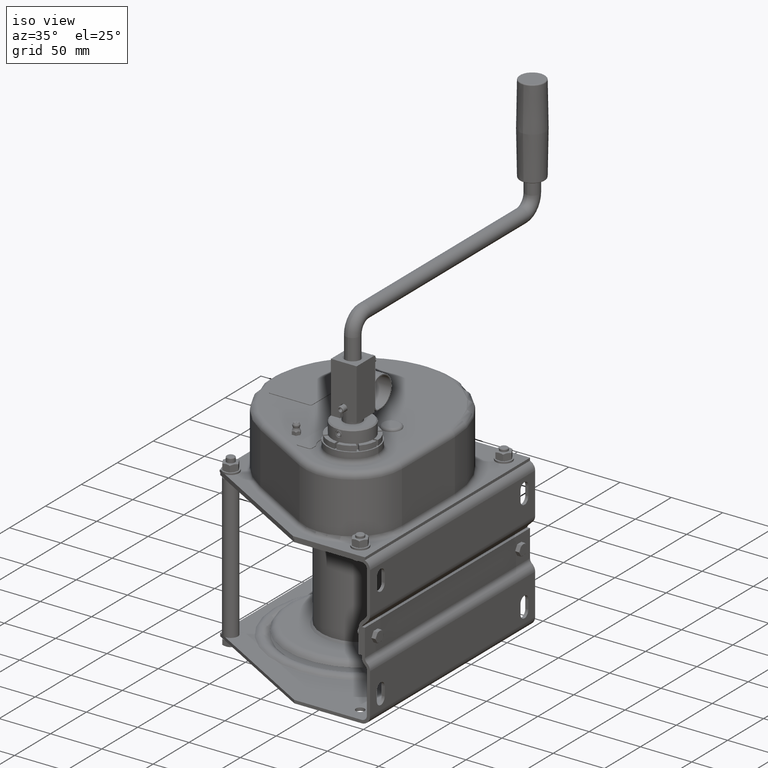
[diagram: clean part render]
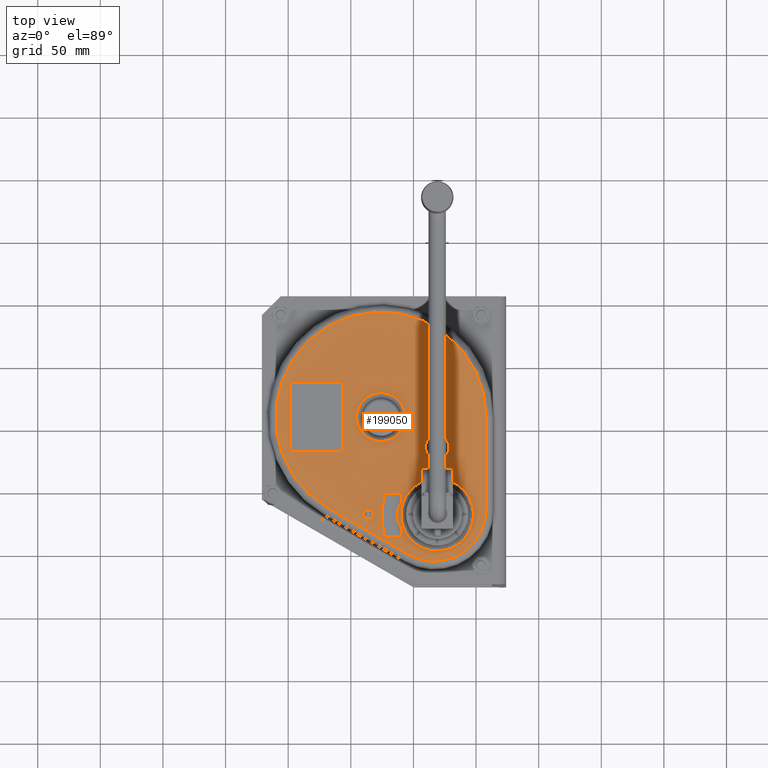
[diagram: tour spotlight — one face highlighted and labeled with its STEP entity id]
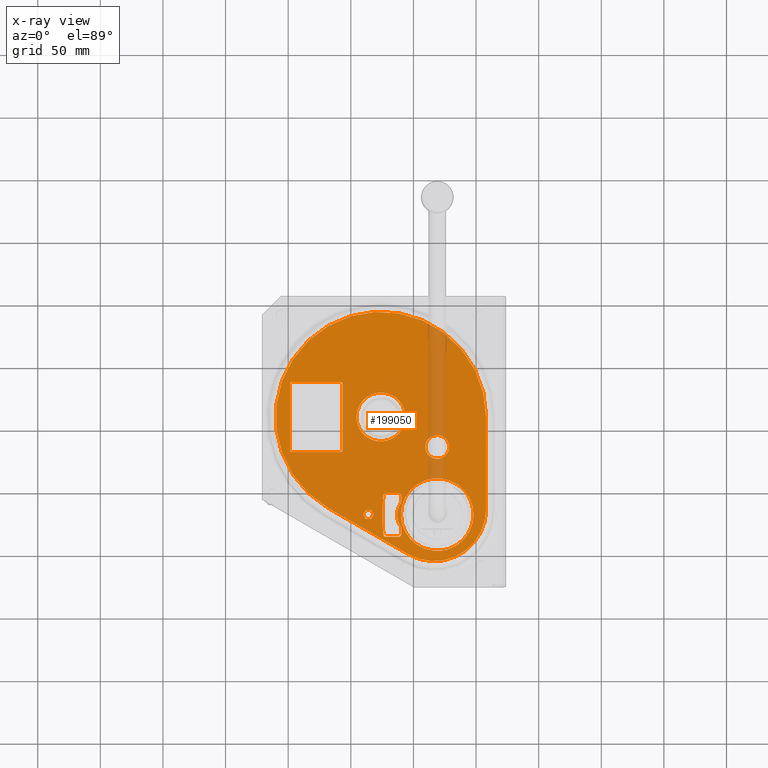
[diagram: x-ray of the same camera — body ghosted, this tour face saturated]
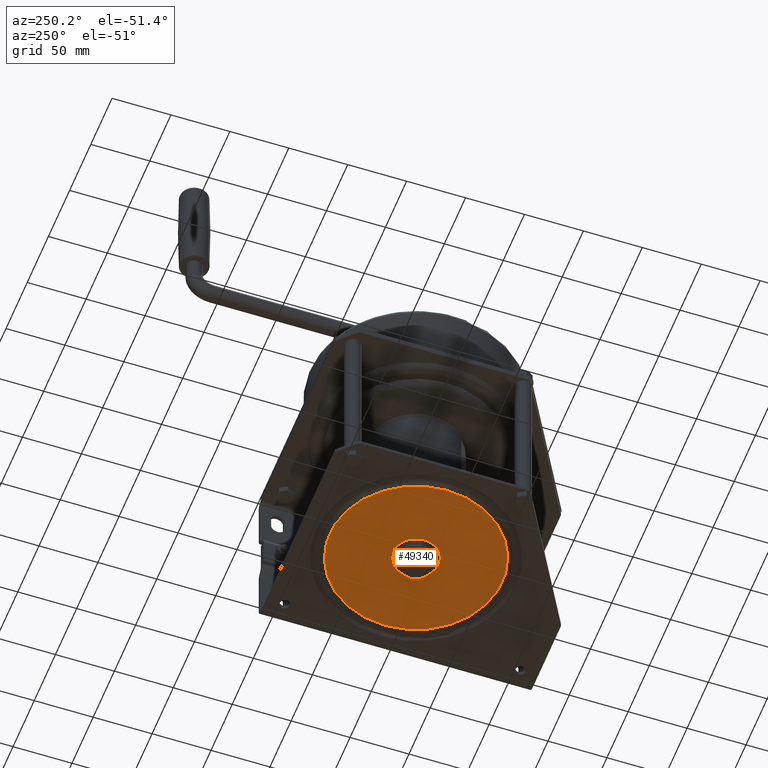
[diagram: tour spotlight — one face highlighted and labeled with its STEP entity id]
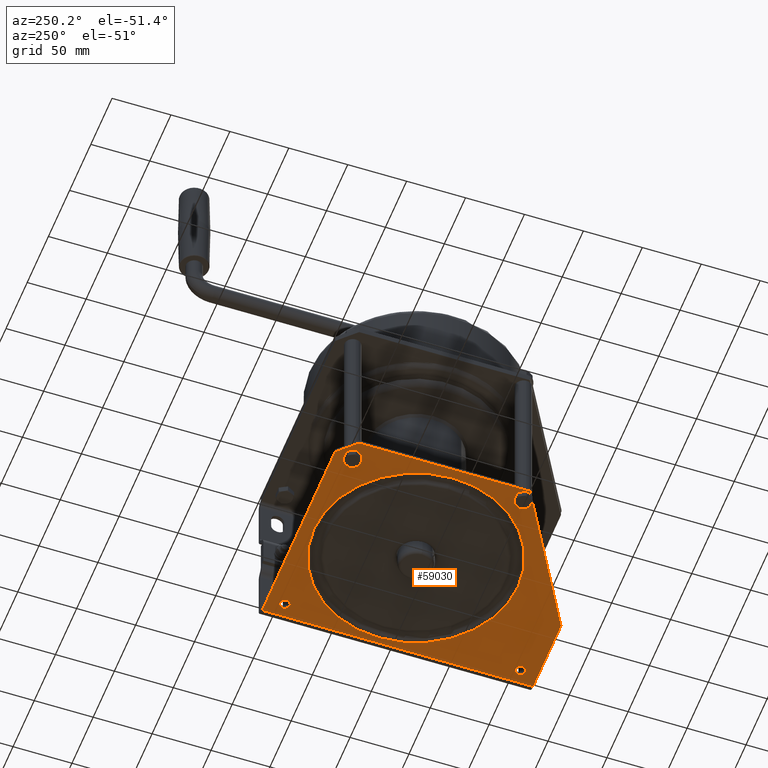
[diagram: tour spotlight — one face highlighted and labeled with its STEP entity id]
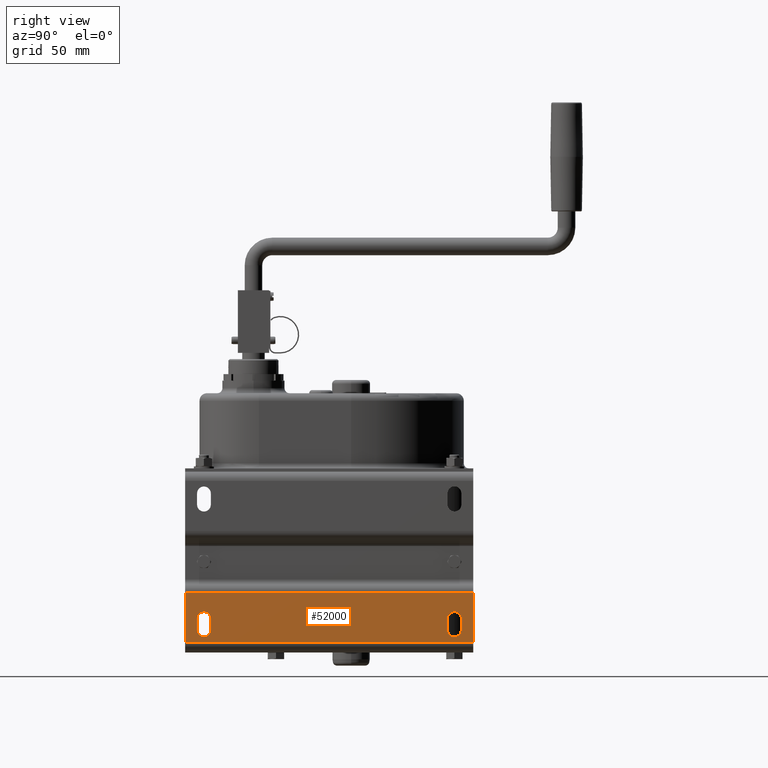
[diagram: tour spotlight — one face highlighted and labeled with its STEP entity id]
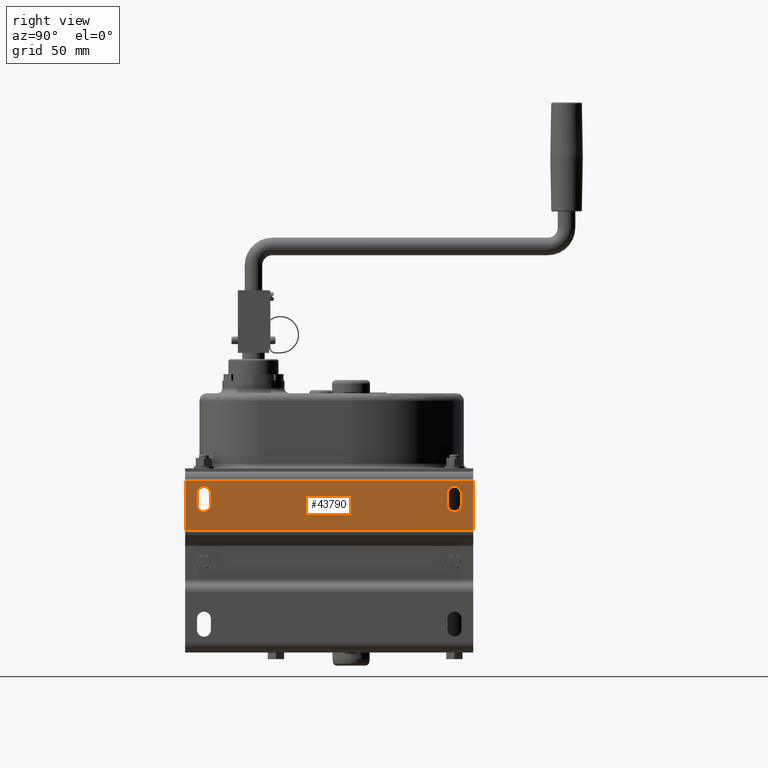
[diagram: tour spotlight — one face highlighted and labeled with its STEP entity id]
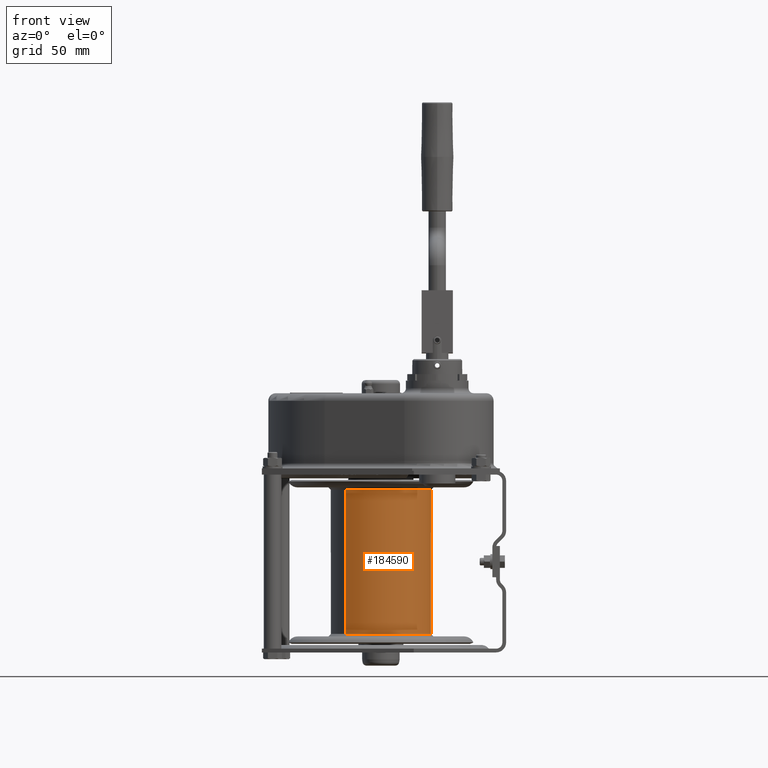
[diagram: tour spotlight — one face highlighted and labeled with its STEP entity id]
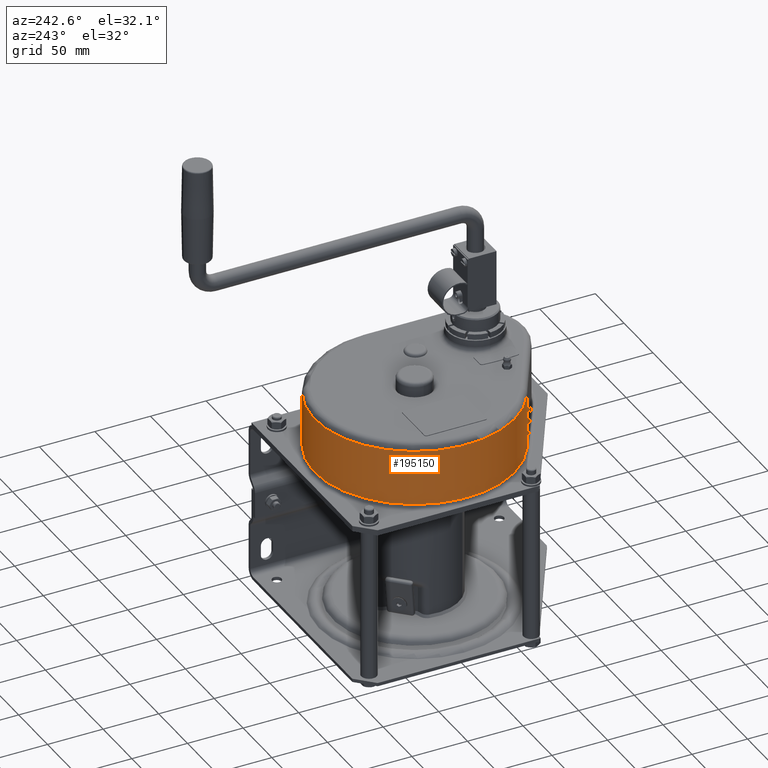
[diagram: tour spotlight — one face highlighted and labeled with its STEP entity id]
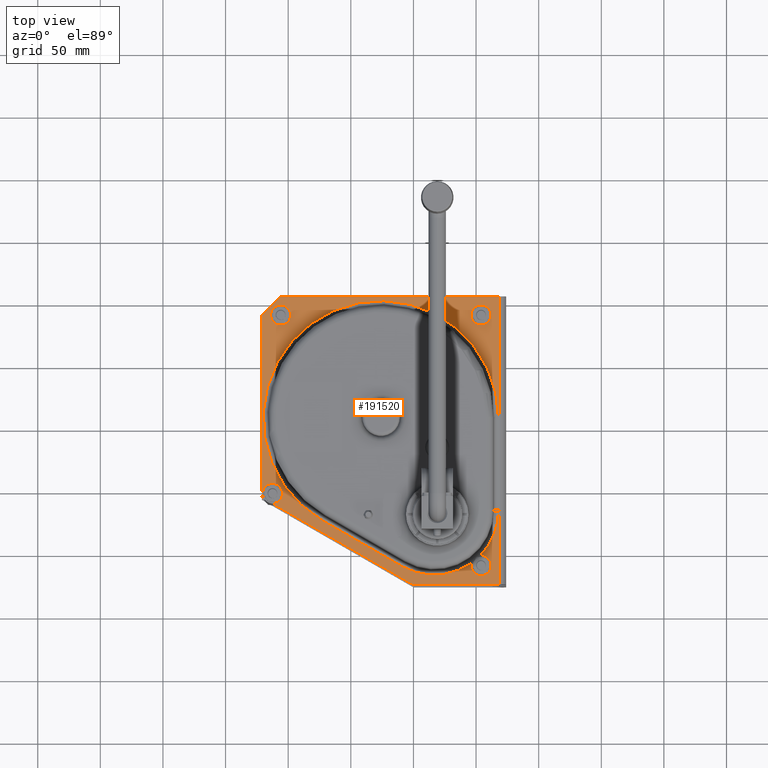
[diagram: tour spotlight — one face highlighted and labeled with its STEP entity id]
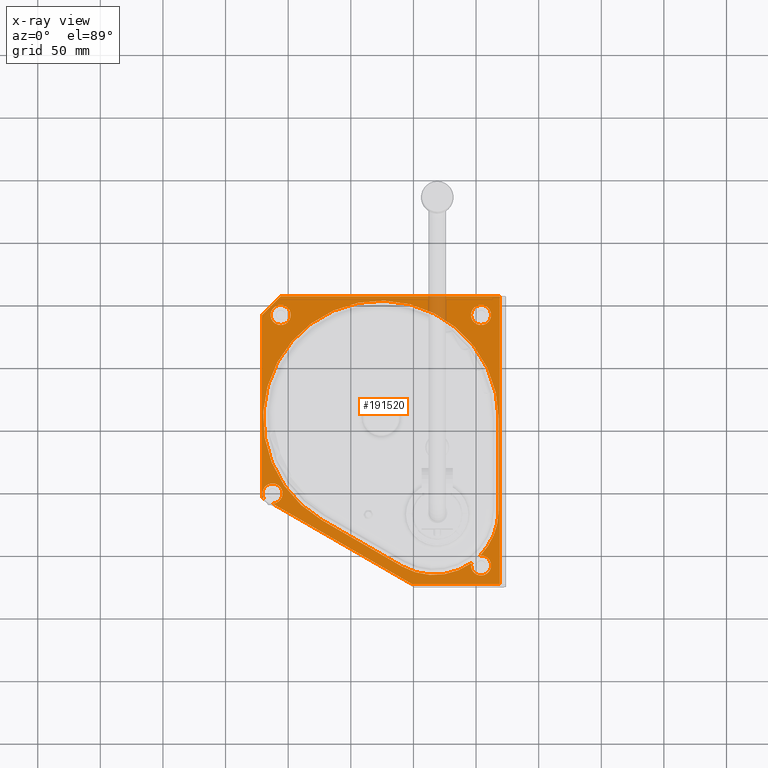
[diagram: x-ray of the same camera — body ghosted, this tour face saturated]
A machine part: a face-by-face anatomy tour. The part has 912 B-rep faces; the first image is the clean iso view, then the 8 largest visible faces are spotlighted one at a time (largest first), each with its STEP entity span.

Face 1 — top view, entity #199050. An x-ray twin of the same camera follows (body ghosted, this face saturated) — the face is partly hidden behind the body. In plain terms, the highlighted planar face has unit normal (0, 0, 1).
Definition (entity closure, byte-faithful):
#195840=CARTESIAN_POINT('',(-7.49652644692287,207.,-10.5109269209001));
#195850=DIRECTION('',(0.,1.,-0.));
#195860=DIRECTION('',(-1.,0.,0.));
#195870=AXIS2_PLACEMENT_3D('',#195840,#195850,#195860);
#195880=PLANE('',#195870);
#195890=CARTESIAN_POINT('',(0.,207.,0.));
#195900=DIRECTION('',(0.,1.,0.));
#195910=DIRECTION('',(-1.,0.,0.));
#195920=AXIS2_PLACEMENT_3D('',#195890,#195900,#195910);
#195930=CIRCLE('',#195920,19.5);
#195940=CARTESIAN_POINT('',(-19.5,207.,0.));
#195950=VERTEX_POINT('',#195940);
#195960=CARTESIAN_POINT('',(19.5,207.,0.));
#195970=VERTEX_POINT('',#195960);
#195980=EDGE_CURVE('',#195950,#195970,#195930,.T.);
#195990=ORIENTED_EDGE('',*,*,#195980,.F.);
#196000=EDGE_CURVE('',#195970,#195950,#195930,.T.);
#196010=ORIENTED_EDGE('',*,*,#196000,.F.);
#196020=EDGE_LOOP('',(#196010,#195990));
#196030=FACE_BOUND('',#196020,.T.);
#196040=CARTESIAN_POINT('',(-45.,207.,-77.9422863405995));
#196050=DIRECTION('',(0.,1.,0.));
#196060=DIRECTION('',(-1.,0.,0.));
#196070=AXIS2_PLACEMENT_3D('',#196040,#196050,#196060);
#196080=CIRCLE('',#196070,29.);
#196090=CARTESIAN_POINT('',(-74.,207.,-77.9422863405995));
#196100=VERTEX_POINT('',#196090);
#196110=CARTESIAN_POINT('',(-16.,207.,-77.9422863405995));
#196120=VERTEX_POINT('',#196110);
#196130=EDGE_CURVE('',#196100,#196120,#196080,.T.);
#196140=ORIENTED_EDGE('',*,*,#196130,.F.);
#196150=EDGE_CURVE('',#196120,#196100,#196080,.T.);
#196160=ORIENTED_EDGE('',*,*,#196150,.F.);
#196170=EDGE_LOOP('',(#196160,#196140));
#196180=FACE_BOUND('',#196170,.T.);
#196190=CARTESIAN_POINT('',(-42.5,207.,-73.6121593216773));
#196200=DIRECTION('',(0.,1.,0.));
#196210=DIRECTION('',(-1.,0.,0.));
#196220=AXIS2_PLACEMENT_3D('',#196190,#196200,#196210);
#196230=CIRCLE('',#196220,41.5);
#196240=CARTESIAN_POINT('',(-21.75,207.,-109.552213578732));
#196250=VERTEX_POINT('',#196240);
#196260=CARTESIAN_POINT('',(-84.,207.,-73.6121593216773));
#196270=VERTEX_POINT('',#196260);
#196280=EDGE_CURVE('',#196250,#196270,#196230,.T.);
#196290=ORIENTED_EDGE('',*,*,#196280,.T.);
#196300=CARTESIAN_POINT('',(-65.2373220768531,207.,-134.659630686139));
#196310=DIRECTION('',(-0.866025403784439,0.,-0.5));
#196320=VECTOR('',#196310,1.);
#196330=LINE('',#196300,#196320);
#196340=CARTESIAN_POINT('',(42.,207.,-72.7461339178928));
#196350=VERTEX_POINT('',#196340);
#196360=EDGE_CURVE('',#196350,#196250,#196330,.T.);
#196370=ORIENTED_EDGE('',*,*,#196360,.T.);
#196380=CARTESIAN_POINT('',(0.,207.,0.));
#196390=DIRECTION('',(0.,1.,0.));
#196400=DIRECTION('',(-1.,0.,0.));
#196410=AXIS2_PLACEMENT_3D('',#196380,#196390,#196400);
#196420=CIRCLE('',#196410,84.);
#196430=CARTESIAN_POINT('',(-84.,207.,0.));
#196440=VERTEX_POINT('',#196430);
#196450=EDGE_CURVE('',#196440,#196350,#196420,.T.);
#196460=ORIENTED_EDGE('',*,*,#196450,.T.);
#196470=CARTESIAN_POINT('',(-84.,207.,-96.1569234220613));
#196480=DIRECTION('',(1.93050371652624E-16,0.,1.));
#196490=VECTOR('',#196480,1.);
#196500=LINE('',#196470,#196490);
#196510=EDGE_CURVE('',#196270,#196440,#196500,.T.);
#196520=ORIENTED_EDGE('',*,*,#196510,.T.);
#196530=EDGE_LOOP('',(#196520,#196460,#196370,#196290));
#196540=FACE_OUTER_BOUND('',#196530,.T.);
#196550=CARTESIAN_POINT('',(-45.,207.,-24.));
#196560=DIRECTION('',(0.,-1.,0.));
#196570=DIRECTION('',(1.,0.,0.));
#196580=AXIS2_PLACEMENT_3D('',#196550,#196560,#196570);
#196590=CIRCLE('',#196580,9.5);
#196600=CARTESIAN_POINT('',(-35.5,207.,-24.));
#196610=VERTEX_POINT('',#196600);
#196620=CARTESIAN_POINT('',(-54.5,207.,-24.));
#196630=VERTEX_POINT('',#196620);
#196640=EDGE_CURVE('',#196610,#196630,#196590,.T.);
#196650=ORIENTED_EDGE('',*,*,#196640,.T.);
#196660=EDGE_CURVE('',#196630,#196610,#196590,.T.);
#196670=ORIENTED_EDGE('',*,*,#196660,.T.);
#196680=EDGE_LOOP('',(#196670,#196650));
#196690=FACE_BOUND('',#196680,.T.);
#196700=CARTESIAN_POINT('',(70.5499999999988,207.,26.0149999999991));
#196710=DIRECTION('',(-1.56776205345258E-15,-1.,-5.23253064359085E-15));
#196720=DIRECTION('',(-1.,1.56776205345258E-15,1.22124532708767E-15));
#196730=AXIS2_PLACEMENT_3D('',#196700,#196710,#196720);
#196740=CIRCLE('',#196730,2.);
#196750=CARTESIAN_POINT('',(72.5499999999988,207.,26.0149999999991));
#196760=VERTEX_POINT('',#196750);
#196770=CARTESIAN_POINT('',(70.5499999999988,207.,28.0149999999991));
#196780=VERTEX_POINT('',#196770);
#196790=EDGE_CURVE('',#196760,#196780,#196740,.T.);
#196800=ORIENTED_EDGE('',*,*,#196790,.T.);
#196810=CARTESIAN_POINT('',(72.5499999999988,207.,-96.1569234220613));
#196820=DIRECTION('',(5.55111512312496E-17,0.,-1.));
#196830=VECTOR('',#196820,1.);
#196840=LINE('',#196810,#196830);
#196850=CARTESIAN_POINT('',(72.5499999999988,207.,-25.9850000000009));
#196860=VERTEX_POINT('',#196850);
#196870=EDGE_CURVE('',#196760,#196860,#196840,.T.);
#196880=ORIENTED_EDGE('',*,*,#196870,.F.);
#196890=CARTESIAN_POINT('',(70.5499999999988,207.,-25.9850000000009));
#196900=DIRECTION('',(-1.56776205345258E-15,-1.,-5.23253064359085E-15));
#196910=DIRECTION('',(-1.,1.56776205345258E-15,1.22124532708767E-15));
#196920=AXIS2_PLACEMENT_3D('',#196890,#196900,#196910);
#196930=CIRCLE('',#196920,2.);
#196940=CARTESIAN_POINT('',(70.5499999999988,207.,-27.9850000000009));
#196950=VERTEX_POINT('',#196940);
#196960=EDGE_CURVE('',#196950,#196860,#196930,.T.);
#196970=ORIENTED_EDGE('',*,*,#196960,.T.);
#196980=CARTESIAN_POINT('',(-65.2373220768531,207.,-27.9850000000008));
#196990=DIRECTION('',(-1.,0.,6.66133814775086E-16));
#197000=VECTOR('',#196990,1.);
#197010=LINE('',#196980,#197000);
#197020=CARTESIAN_POINT('',(32.5499999999988,207.,-27.9850000000009));
#197030=VERTEX_POINT('',#197020);
#197040=EDGE_CURVE('',#196950,#197030,#197010,.T.);
#197050=ORIENTED_EDGE('',*,*,#197040,.F.);
#197060=CARTESIAN_POINT('',(32.5499999999988,207.,-25.9850000000009));
#197070=DIRECTION('',(-1.56776205345258E-15,-1.,-5.23253064359085E-15));
#197080=DIRECTION('',(-1.,1.56776205345258E-15,1.22124532708767E-15));
#197090=AXIS2_PLACEMENT_3D('',#197060,#197070,#197080);
#197100=CIRCLE('',#197090,2.);
#197110=CARTESIAN_POINT('',(30.5499999999988,207.,-25.9850000000009));
#197120=VERTEX_POINT('',#197110);
#197130=EDGE_CURVE('',#197120,#197030,#197100,.T.);
#197140=ORIENTED_EDGE('',*,*,#197130,.T.);
#197150=CARTESIAN_POINT('',(30.5499999999987,207.,-96.1569234220613));
#197160=DIRECTION('',(1.27675647831894E-15,0.,1.));
#197170=VECTOR('',#197160,1.);
#197180=LINE('',#197150,#197170);
#197190=CARTESIAN_POINT('',(30.5499999999989,207.,26.0149999999991));
#197200=VERTEX_POINT('',#197190);
#197210=EDGE_CURVE('',#197120,#197200,#197180,.T.);
#197220=ORIENTED_EDGE('',*,*,#197210,.F.);
#197230=CARTESIAN_POINT('',(32.5499999999989,207.,26.0149999999991));
#197240=DIRECTION('',(1.56776205345258E-15,1.,5.23253064359085E-15));
#197250=DIRECTION('',(1.,-1.56776205345258E-15,-1.22124532708767E-15));
#197260=AXIS2_PLACEMENT_3D('',#197230,#197240,#197250);
#197270=CIRCLE('',#197260,2.);
#197280=CARTESIAN_POINT('',(32.5499999999989,207.,28.0149999999991));
#197290=VERTEX_POINT('',#197280);
#197300=EDGE_CURVE('',#197200,#197290,#197270,.T.);
#197310=ORIENTED_EDGE('',*,*,#197300,.F.);
#197320=CARTESIAN_POINT('',(-65.2373220768531,207.,28.0149999999992));
#197330=DIRECTION('',(-1.,0.,1.22124532708766E-15));
#197340=VECTOR('',#197330,1.);
#197350=LINE('',#197320,#197340);
#197360=EDGE_CURVE('',#196780,#197290,#197350,.T.);
#197370=ORIENTED_EDGE('',*,*,#197360,.T.);
#197380=EDGE_LOOP('',(#197370,#197310,#197220,#197140,#197050,#196970,
#196880,#196800));
#197390=FACE_BOUND('',#197380,.T.);
#197400=CARTESIAN_POINT('',(-165.8866282858,207.,-78.6254850684709));
#197410=DIRECTION('',(3.14500586553911E-32,1.,-1.22464679914736E-16));
#197420=DIRECTION('',(-5.55111512312578E-17,1.22464679914736E-16,1.));
#197430=AXIS2_PLACEMENT_3D('',#197400,#197410,#197420);
#197440=CIRCLE('',#197430,164.541232103691);
#197450=CARTESIAN_POINT('',(-1.34596712250209,207.,-78.1920267131956));
#197460=VERTEX_POINT('',#197450);
#197470=CARTESIAN_POINT('',(-2.05437515703508,207.,-93.8835942879404));
#197480=VERTEX_POINT('',#197470);
#197490=EDGE_CURVE('',#197460,#197480,#197440,.T.);
#197500=ORIENTED_EDGE('',*,*,#197490,.F.);
#197510=CARTESIAN_POINT('',(-4.04517948300279,207.,-93.6920267131576));
#197520=DIRECTION('',(3.14500586553911E-32,1.,-1.22464679914736E-16));
#197530=DIRECTION('',(-5.55111512312578E-17,1.22464679914736E-16,1.));
#197540=AXIS2_PLACEMENT_3D('',#197510,#197520,#197530);
#197550=CIRCLE('',#197540,1.99999999999999);
#197560=CARTESIAN_POINT('',(-4.04517948300278,207.,-95.6920267131576));
#197570=VERTEX_POINT('',#197560);
#197580=EDGE_CURVE('',#197480,#197570,#197550,.T.);
#197590=ORIENTED_EDGE('',*,*,#197580,.F.);
#197600=CARTESIAN_POINT('',(-65.2373220768531,207.,-95.6920267131576));
#197610=DIRECTION('',(1.,0.,5.55111512312578E-17));
#197620=VECTOR('',#197610,1.);
#197630=LINE('',#197600,#197620);
#197640=CARTESIAN_POINT('',(-14.3464119562285,207.,-95.6920267131576));
#197650=VERTEX_POINT('',#197640);
#197660=EDGE_CURVE('',#197650,#197570,#197630,.T.);
#197670=ORIENTED_EDGE('',*,*,#197660,.T.);
#197680=CARTESIAN_POINT('',(-14.3464119562285,207.,-93.6920267131576));
#197690=DIRECTION('',(3.14500586553911E-32,1.,-1.22464679914736E-16));
#197700=DIRECTION('',(-5.55111512312578E-17,1.22464679914736E-16,1.));
#197710=AXIS2_PLACEMENT_3D('',#197680,#197690,#197700);
#197720=CIRCLE('',#197710,2.);
#197730=CARTESIAN_POINT('',(-16.3464119562285,207.,-93.6920267131576));
#197740=VERTEX_POINT('',#197730);
#197750=EDGE_CURVE('',#197650,#197740,#197720,.T.);
#197760=ORIENTED_EDGE('',*,*,#197750,.F.);
#197770=CARTESIAN_POINT('',(-16.3464119562285,207.,-96.1569234220613));
#197780=DIRECTION('',(1.30674186791556E-15,0.,-1.));
#197790=VECTOR('',#197780,1.);
#197800=LINE('',#197770,#197790);
#197810=CARTESIAN_POINT('',(-16.3464119562285,207.,-88.7453024362096));
#197820=VERTEX_POINT('',#197810);
#197830=EDGE_CURVE('',#197820,#197740,#197800,.T.);
#197840=ORIENTED_EDGE('',*,*,#197830,.T.);
#197850=CARTESIAN_POINT('',(-14.3464119562285,207.,-88.7453024362096));
#197860=DIRECTION('',(3.14500586553911E-32,1.,-1.22464679914736E-16));
#197870=DIRECTION('',(-5.55111512312578E-17,1.22464679914736E-16,1.));
#197880=AXIS2_PLACEMENT_3D('',#197850,#197860,#197870);
#197890=CIRCLE('',#197880,2.);
#197900=CARTESIAN_POINT('',(-15.9666099761076,207.,-87.5727162447594));
#197910=VERTEX_POINT('',#197900);
#197920=EDGE_CURVE('',#197820,#197910,#197890,.T.);
#197930=ORIENTED_EDGE('',*,*,#197920,.F.);
#197940=CARTESIAN_POINT('',(-28.9281941351406,207.,-78.1920267131575));
#197950=DIRECTION('',(3.14500586553911E-32,1.,-1.22464679914736E-16));
#197960=DIRECTION('',(-5.55111512312578E-17,1.22464679914736E-16,1.));
#197970=AXIS2_PLACEMENT_3D('',#197940,#197950,#197960);
#197980=CIRCLE('',#197970,16.);
#197990=CARTESIAN_POINT('',(-15.9666099761076,207.,-68.8113371815556));
#198000=VERTEX_POINT('',#197990);
#198010=EDGE_CURVE('',#198000,#197910,#197980,.T.);
#198020=ORIENTED_EDGE('',*,*,#198010,.T.);
#198030=CARTESIAN_POINT('',(-14.3464119562285,207.,-67.6387509901053));
#198040=DIRECTION('',(3.14500586553911E-32,1.,-1.22464679914736E-16));
#198050=DIRECTION('',(-5.55111512312578E-17,1.22464679914736E-16,1.));
#198060=AXIS2_PLACEMENT_3D('',#198030,#198040,#198050);
#198070=CIRCLE('',#198060,2.00000000000002);
#198080=CARTESIAN_POINT('',(-16.3464119562285,207.,-67.6387509901053));
#198090=VERTEX_POINT('',#198080);
#198100=EDGE_CURVE('',#198000,#198090,#198070,.T.);
#198110=ORIENTED_EDGE('',*,*,#198100,.F.);
#198120=CARTESIAN_POINT('',(-16.3464119562285,207.,-96.1569234220613));
#198130=DIRECTION('',(-5.7290965714833E-16,0.,-1.));
#198140=VECTOR('',#198130,1.);
#198150=LINE('',#198120,#198140);
#198160=CARTESIAN_POINT('',(-16.3464119562285,207.,-62.6920267131576));
#198170=VERTEX_POINT('',#198160);
#198180=EDGE_CURVE('',#198170,#198090,#198150,.T.);
#198190=ORIENTED_EDGE('',*,*,#198180,.T.);
#198200=CARTESIAN_POINT('',(-14.3464119562285,207.,-62.6920267131576));
#198210=DIRECTION('',(3.14500586553911E-32,1.,-1.22464679914736E-16));
#198220=DIRECTION('',(-5.55111512312578E-17,1.22464679914736E-16,1.));
#198230=AXIS2_PLACEMENT_3D('',#198200,#198210,#198220);
#198240=CIRCLE('',#198230,2.);
#198250=CARTESIAN_POINT('',(-14.3464119562285,207.,-60.6920267131576));
#198260=VERTEX_POINT('',#198250);
#198270=EDGE_CURVE('',#198170,#198260,#198240,.T.);
#198280=ORIENTED_EDGE('',*,*,#198270,.F.);
#198290=CARTESIAN_POINT('',(-65.2373220768531,207.,-60.6920267131576));
#198300=DIRECTION('',(-1.,0.,-5.55111512312578E-17));
#198310=VECTOR('',#198300,1.);
#198320=LINE('',#198290,#198310);
#198330=CARTESIAN_POINT('',(-4.03243241758622,207.,-60.6920267131576));
#198340=VERTEX_POINT('',#198330);
#198350=EDGE_CURVE('',#198340,#198260,#198320,.T.);
#198360=ORIENTED_EDGE('',*,*,#198350,.T.);
#198370=CARTESIAN_POINT('',(-4.03243241758622,207.,-62.6920267131576));
#198380=DIRECTION('',(3.14500586553911E-32,1.,-1.22464679914736E-16));
#198390=DIRECTION('',(-5.55111512312578E-17,1.22464679914736E-16,1.));
#198400=AXIS2_PLACEMENT_3D('',#198370,#198380,#198390);
#198410=CIRCLE('',#198400,2.);
#198420=CARTESIAN_POINT('',(-2.0414604523485,207.,-62.5022093439907));
#198430=VERTEX_POINT('',#198420);
#198440=EDGE_CURVE('',#198340,#198430,#198410,.T.);
#198450=ORIENTED_EDGE('',*,*,#198440,.F.);
#198460=CARTESIAN_POINT('',(-165.888314513429,207.,-77.6254850684709));
#198470=DIRECTION('',(3.14500586553911E-32,1.,-1.22464679914736E-16));
#198480=DIRECTION('',(-5.55111512312578E-17,1.22464679914736E-16,1.));
#198490=AXIS2_PLACEMENT_3D('',#198460,#198470,#198480);
#198500=CIRCLE('',#198490,164.543322727942);
#198510=EDGE_CURVE('',#198430,#197460,#198500,.T.);
#198520=ORIENTED_EDGE('',*,*,#198510,.F.);
#198530=EDGE_LOOP('',(#198520,#198450,#198360,#198280,#198190,#198110,
#198020,#197930,#197840,#197760,#197670,#197590,#197500));
#198540=FACE_BOUND('',#198530,.T.);
#198550=CARTESIAN_POINT('',(16.4747737378459,207.,-96.1569234220613));
#198560=DIRECTION('',(-0.5,0.,0.866025403784439));
#198570=VECTOR('',#198560,1.);
#198580=LINE('',#198550,#198570);
#198590=CARTESIAN_POINT('',(7.97927405783619,207.,-81.4422863405994));
#198600=VERTEX_POINT('',#198590);
#198610=CARTESIAN_POINT('',(5.95854811567249,207.,-77.9422863405994));
#198620=VERTEX_POINT('',#198610);
#198630=EDGE_CURVE('',#198600,#198620,#198580,.T.);
#198640=ORIENTED_EDGE('',*,*,#198630,.F.);
#198650=CARTESIAN_POINT('',(-4.5576775065009,207.,-96.1569234220613));
#198660=DIRECTION('',(0.5,0.,0.866025403784439));
#198670=VECTOR('',#198660,1.);
#198680=LINE('',#198650,#198670);
#198690=CARTESIAN_POINT('',(7.97927405783619,207.,-74.4422863405994));
#198700=VERTEX_POINT('',#198690);
#198710=EDGE_CURVE('',#198620,#198700,#198680,.T.);
#198720=ORIENTED_EDGE('',*,*,#198710,.F.);
#198730=CARTESIAN_POINT('',(-65.2373220768531,207.,-74.4422863405994));
#198740=DIRECTION('',(1.,0.,6.66133814775094E-16));
#198750=VECTOR('',#198740,1.);
#198760=LINE('',#198730,#198750);
#198770=CARTESIAN_POINT('',(12.0207259421636,207.,-74.4422863405994));
#198780=VERTEX_POINT('',#198770);
#198790=EDGE_CURVE('',#198700,#198780,#198760,.T.);
#198800=ORIENTED_EDGE('',*,*,#198790,.F.);
#198810=CARTESIAN_POINT('',(24.5576775065007,207.,-96.1569234220613));
#198820=DIRECTION('',(0.500000000000001,0.,-0.866025403784438));
#198830=VECTOR('',#198820,1.);
#198840=LINE('',#198810,#198830);
#198850=CARTESIAN_POINT('',(14.0414518843273,207.,-77.9422863405994));
#198860=VERTEX_POINT('',#198850);
#198870=EDGE_CURVE('',#198780,#198860,#198840,.T.);
#198880=ORIENTED_EDGE('',*,*,#198870,.F.);
#198890=CARTESIAN_POINT('',(3.52522626215388,207.,-96.1569234220613));
#198900=DIRECTION('',(0.499999999999999,0.,0.866025403784439));
#198910=VECTOR('',#198900,1.);
#198920=LINE('',#198890,#198910);
#198930=CARTESIAN_POINT('',(12.0207259421636,207.,-81.4422863405994));
#198940=VERTEX_POINT('',#198930);
#198950=EDGE_CURVE('',#198940,#198860,#198920,.T.);
#198960=ORIENTED_EDGE('',*,*,#198950,.T.);
#198970=CARTESIAN_POINT('',(-65.2373220768531,207.,-81.4422863405994));
#198980=DIRECTION('',(-1.,0.,-9.99200722162641E-16));
#198990=VECTOR('',#198980,1.);
#199000=LINE('',#198970,#198990);
#199010=EDGE_CURVE('',#198940,#198600,#199000,.T.);
#199020=ORIENTED_EDGE('',*,*,#199010,.F.);
#199030=EDGE_LOOP('',(#199020,#198960,#198880,#198800,#198720,#198640));
#199040=FACE_BOUND('',#199030,.T.);
#199050=ADVANCED_FACE('',(#196030,#196180,#196540,#196690,#197390,
#198540,#199040),#195880,.T.);

Face 2 — auxiliary view, entity #49340. In plain terms, the highlighted planar face has unit normal (0, -0, -1).
Definition (entity closure, byte-faithful):
#48850=CARTESIAN_POINT('',(73.2917960675006,0.,0.));
#48860=VERTEX_POINT('',#48850);
#48890=CARTESIAN_POINT('',(0.,0.,0.));
#48900=DIRECTION('',(0.,1.,0.));
#48910=DIRECTION('',(1.,0.,0.));
#48920=AXIS2_PLACEMENT_3D('',#48890,#48900,#48910);
#48930=CIRCLE('',#48920,73.2917960675006);
#48940=CARTESIAN_POINT('',(-73.2917960675006,0.,0.));
#48950=VERTEX_POINT('',#48940);
#48960=EDGE_CURVE('',#48950,#48860,#48930,.T.);
#49090=CARTESIAN_POINT('',(45.2087121525221,0.,0.));
#49100=DIRECTION('',(-0.,-1.,-0.));
#49110=DIRECTION('',(-1.,0.,0.));
#49120=AXIS2_PLACEMENT_3D('',#49090,#49100,#49110);
#49130=PLANE('',#49120);
#49140=CARTESIAN_POINT('',(0.,0.,0.));
#49150=DIRECTION('',(0.,1.,0.));
#49160=DIRECTION('',(1.,0.,0.));
#49170=AXIS2_PLACEMENT_3D('',#49140,#49150,#49160);
#49180=CIRCLE('',#49170,19.5);
#49190=CARTESIAN_POINT('',(19.5,0.,0.));
#49200=VERTEX_POINT('',#49190);
#49210=CARTESIAN_POINT('',(-19.5,0.,0.));
#49220=VERTEX_POINT('',#49210);
#49230=EDGE_CURVE('',#49200,#49220,#49180,.T.);
#49240=ORIENTED_EDGE('',*,*,#49230,.T.);
#49250=EDGE_CURVE('',#49220,#49200,#49180,.T.);
#49260=ORIENTED_EDGE('',*,*,#49250,.T.);
#49270=EDGE_LOOP('',(#49260,#49240));
#49280=FACE_BOUND('',#49270,.T.);
#49290=EDGE_CURVE('',#48860,#48950,#48930,.T.);
#49300=ORIENTED_EDGE('',*,*,#49290,.F.);
#49310=ORIENTED_EDGE('',*,*,#48960,.F.);
#49320=EDGE_LOOP('',(#49310,#49300));
#49330=FACE_OUTER_BOUND('',#49320,.T.);
#49340=ADVANCED_FACE('',(#49280,#49330),#49130,.T.);

Face 3 — auxiliary view, entity #59030. In plain terms, the highlighted planar face has unit normal (0, 0, -1).
Definition (entity closure, byte-faithful):
#1750=CARTESIAN_POINT('',(86.7082039324994,0.,0.));
#1760=VERTEX_POINT('',#1750);
#1950=CARTESIAN_POINT('',(-86.7082039324994,0.,0.));
#1960=VERTEX_POINT('',#1950);
#1990=CARTESIAN_POINT('',(0.,0.,0.));
#2000=DIRECTION('',(0.,1.,0.));
#2010=DIRECTION('',(1.,0.,0.));
#2020=AXIS2_PLACEMENT_3D('',#1990,#2000,#2010);
#2030=CIRCLE('',#2020,86.7082039324994);
#2040=EDGE_CURVE('',#1960,#1760,#2030,.T.);
#48060=CARTESIAN_POINT('',(284.781534200716,0.,-107.281534200716));
#48070=DIRECTION('',(0.707106781186548,0.,-0.707106781186548));
#48080=VECTOR('',#48070,1.);
#48090=LINE('',#48060,#48080);
#48100=CARTESIAN_POINT('',(79.9999999999999,0.,97.5));
#48110=VERTEX_POINT('',#48100);
#48120=CARTESIAN_POINT('',(95.,0.,82.5));
#48130=VERTEX_POINT('',#48120);
#48140=EDGE_CURVE('',#48110,#48130,#48090,.T.);
#49470=CARTESIAN_POINT('',(-92.,0.,-132.5));
#49480=VERTEX_POINT('',#49470);
#49640=CARTESIAN_POINT('',(-92.,0.,97.5));
#49650=VERTEX_POINT('',#49640);
#49680=CARTESIAN_POINT('',(-92.,0.,-107.281534200716));
#49690=DIRECTION('',(0.,0.,1.));
#49700=VECTOR('',#49690,1.);
#49710=LINE('',#49680,#49700);
#49720=EDGE_CURVE('',#49480,#49650,#49710,.T.);
#50650=CARTESIAN_POINT('',(0.,0.,97.5));
#50660=DIRECTION('',(-1.,0.,0.));
#50670=VECTOR('',#50660,1.);
#50680=LINE('',#50650,#50670);
#50690=EDGE_CURVE('',#48110,#49650,#50680,.T.);
#53930=CARTESIAN_POINT('',(-26.2435565298214,0.,-132.5));
#53940=VERTEX_POINT('',#53930);
#53970=CARTESIAN_POINT('',(0.,0.,-117.348275573014));
#53980=DIRECTION('',(0.866025403784439,0.,0.5));
#53990=VECTOR('',#53980,1.);
#54000=LINE('',#53970,#53990);
#54010=CARTESIAN_POINT('',(88.0717967697245,0.,-66.5));
#54020=VERTEX_POINT('',#54010);
#54030=EDGE_CURVE('',#53940,#54020,#54000,.T.);
#54090=CARTESIAN_POINT('',(91.3432667397366,0.,-64.6112159321677));
#54100=VERTEX_POINT('',#54090);
#54130=CARTESIAN_POINT('',(95.,0.,-62.5));
#54140=VERTEX_POINT('',#54130);
#54150=EDGE_CURVE('',#54100,#54140,#54000,.T.);
#54420=CARTESIAN_POINT('',(95.,0.,0.));
#54430=DIRECTION('',(-8.88178419700125E-17,0.,1.));
#54440=VECTOR('',#54430,1.);
#54450=LINE('',#54420,#54440);
#54460=EDGE_CURVE('',#54140,#48130,#54450,.T.);
#56960=CARTESIAN_POINT('',(0.,0.,-132.5));
#56970=DIRECTION('',(1.,0.,0.));
#56980=VECTOR('',#56970,1.);
#56990=LINE('',#56960,#56980);
#57000=EDGE_CURVE('',#49480,#53940,#56990,.T.);
#57580=CARTESIAN_POINT('',(-100.,0.,-132.5));
#57590=DIRECTION('',(0.,-1.,0.));
#57600=DIRECTION('',(0.,0.,1.));
#57610=AXIS2_PLACEMENT_3D('',#57580,#57590,#57600);
#57620=PLANE('',#57610);
#57630=EDGE_CURVE('',#1760,#1960,#2030,.T.);
#57640=ORIENTED_EDGE('',*,*,#57630,.T.);
#57650=ORIENTED_EDGE('',*,*,#2040,.T.);
#57660=EDGE_LOOP('',(#57650,#57640));
#57670=FACE_BOUND('',#57660,.T.);
#57680=CARTESIAN_POINT('',(-80.,0.,82.5));
#57690=DIRECTION('',(0.,1.,0.));
#57700=DIRECTION('',(-1.,0.,0.));
#57710=AXIS2_PLACEMENT_3D('',#57680,#57690,#57700);
#57720=CIRCLE('',#57710,4.25);
#57730=CARTESIAN_POINT('',(-84.25,0.,82.5));
#57740=VERTEX_POINT('',#57730);
#57750=CARTESIAN_POINT('',(-75.75,0.,82.5));
#57760=VERTEX_POINT('',#57750);
#57770=EDGE_CURVE('',#57740,#57760,#57720,.T.);
#57780=ORIENTED_EDGE('',*,*,#57770,.T.);
#57790=EDGE_CURVE('',#57760,#57740,#57720,.T.);
#57800=ORIENTED_EDGE('',*,*,#57790,.T.);
#57810=EDGE_LOOP('',(#57800,#57780));
#57820=FACE_BOUND('',#57810,.T.);
#57830=CARTESIAN_POINT('',(-80.,0.,-117.5));
#57840=DIRECTION('',(0.,1.,0.));
#57850=DIRECTION('',(-1.,0.,0.));
#57860=AXIS2_PLACEMENT_3D('',#57830,#57840,#57850);
#57870=CIRCLE('',#57860,4.25);
#57880=CARTESIAN_POINT('',(-84.25,0.,-117.5));
#57890=VERTEX_POINT('',#57880);
#57900=CARTESIAN_POINT('',(-75.75,0.,-117.5));
#57910=VERTEX_POINT('',#57900);
#57920=EDGE_CURVE('',#57890,#57910,#57870,.T.);
#57930=ORIENTED_EDGE('',*,*,#57920,.T.);
#57940=EDGE_CURVE('',#57910,#57890,#57870,.T.);
#57950=ORIENTED_EDGE('',*,*,#57940,.T.);
#57960=EDGE_LOOP('',(#57950,#57930));
#57970=FACE_BOUND('',#57960,.T.);
#57980=ORIENTED_EDGE('',*,*,#49720,.F.);
#57990=ORIENTED_EDGE('',*,*,#50690,.T.);
#58000=ORIENTED_EDGE('',*,*,#48140,.F.);
#58010=ORIENTED_EDGE('',*,*,#54460,.T.);
#58020=ORIENTED_EDGE('',*,*,#54150,.T.);
#58030=CARTESIAN_POINT('',(73.1303440286693,-2.8421709430404E-14,
-96.1569234220613));
#58040=DIRECTION('',(0.5,0.,0.866025403784439));
#58050=VECTOR('',#58040,1.);
#58060=LINE('',#58030,#58050);
#58070=CARTESIAN_POINT('',(94.0055534994651,0.,-60.));
#58080=VERTEX_POINT('',#58070);
#58090=EDGE_CURVE('',#54100,#58080,#58060,.T.);
#58100=ORIENTED_EDGE('',*,*,#58090,.F.);
#58110=CARTESIAN_POINT('',(114.880762970261,0.,-96.1569234220613));
#58120=DIRECTION('',(-0.5,0.,0.866025403784439));
#58130=VECTOR('',#58120,1.);
#58140=LINE('',#58110,#58130);
#58150=CARTESIAN_POINT('',(90.2527767497325,0.,-53.5));
#58160=VERTEX_POINT('',#58150);
#58170=EDGE_CURVE('',#58080,#58160,#58140,.T.);
#58180=ORIENTED_EDGE('',*,*,#58170,.F.);
#58190=CARTESIAN_POINT('',(-65.2373220768531,0.,-53.5000000000001));
#58200=DIRECTION('',(-1.,0.,-3.55008495947735E-16));
#58210=VECTOR('',#58200,1.);
#58220=LINE('',#58190,#58210);
#58230=CARTESIAN_POINT('',(82.7472232502674,2.8421709430404E-14,-53.5));
#58240=VERTEX_POINT('',#58230);
#58250=EDGE_CURVE('',#58160,#58240,#58220,.T.);
#58260=ORIENTED_EDGE('',*,*,#58250,.F.);
#58270=CARTESIAN_POINT('',(58.1192370297391,2.8421709430404E-14,
-96.1569234220613));
#58280=DIRECTION('',(-0.5,0.,-0.866025403784439));
#58290=VECTOR('',#58280,1.);
#58300=LINE('',#58270,#58290);
#58310=CARTESIAN_POINT('',(78.9944465005349,2.8421709430404E-14,-60.));
#58320=VERTEX_POINT('',#58310);
#58330=EDGE_CURVE('',#58240,#58320,#58300,.T.);
#58340=ORIENTED_EDGE('',*,*,#58330,.F.);
#58350=CARTESIAN_POINT('',(99.8696559713307,0.,-96.1569234220613));
#58360=DIRECTION('',(0.5,0.,-0.866025403784438));
#58370=VECTOR('',#58360,1.);
#58380=LINE('',#58350,#58370);
#58390=CARTESIAN_POINT('',(82.7472232502674,0.,-66.5));
#58400=VERTEX_POINT('',#58390);
#58410=EDGE_CURVE('',#58320,#58400,#58380,.T.);
#58420=ORIENTED_EDGE('',*,*,#58410,.F.);
#58430=CARTESIAN_POINT('',(-65.2373220768531,0.,-66.5000000000001));
#58440=DIRECTION('',(1.,0.,3.55008495947735E-16));
#58450=VECTOR('',#58440,1.);
#58460=LINE('',#58430,#58450);
#58470=EDGE_CURVE('',#58400,#54020,#58460,.T.);
#58480=ORIENTED_EDGE('',*,*,#58470,.F.);
#58490=ORIENTED_EDGE('',*,*,#54030,.T.);
#58500=ORIENTED_EDGE('',*,*,#57000,.T.);
#58510=EDGE_LOOP('',(#58500,#58490,#58480,#58420,#58340,#58260,#58180,
#58100,#58020,#58010,#58000,#57990,#57980));
#58520=FACE_OUTER_BOUND('',#58510,.T.);
#58530=CARTESIAN_POINT('',(-15.6420693308523,-2.8421709430404E-14,
-96.1569234220613));
#58540=DIRECTION('',(0.5,0.,0.866025403784439));
#58550=VECTOR('',#58540,1.);
#58560=LINE('',#58530,#58550);
#58570=CARTESIAN_POINT('',(83.7527767497326,-2.8421709430404E-14,
76.0000000000001));
#58580=VERTEX_POINT('',#58570);
#58590=CARTESIAN_POINT('',(87.5055534994651,0.,82.5));
#58600=VERTEX_POINT('',#58590);
#58610=EDGE_CURVE('',#58580,#58600,#58560,.T.);
#58620=ORIENTED_EDGE('',*,*,#58610,.F.);
#58630=CARTESIAN_POINT('',(190.653176329783,0.,-96.1569234220613));
#58640=DIRECTION('',(-0.5,0.,0.866025403784439));
#58650=VECTOR('',#58640,1.);
#58660=LINE('',#58630,#58650);
#58670=CARTESIAN_POINT('',(83.7527767497325,0.,89.));
#58680=VERTEX_POINT('',#58670);
#58690=EDGE_CURVE('',#58600,#58680,#58660,.T.);
#58700=ORIENTED_EDGE('',*,*,#58690,.F.);
#58710=CARTESIAN_POINT('',(-65.2373220768531,0.,88.9999999999999));
#58720=DIRECTION('',(-1.,0.,-3.55008495947735E-16));
#58730=VECTOR('',#58720,1.);
#58740=LINE('',#58710,#58730);
#58750=CARTESIAN_POINT('',(76.2472232502674,2.8421709430404E-14,89.));
#58760=VERTEX_POINT('',#58750);
#58770=EDGE_CURVE('',#58680,#58760,#58740,.T.);
#58780=ORIENTED_EDGE('',*,*,#58770,.F.);
#58790=CARTESIAN_POINT('',(-30.6531763297825,2.8421709430404E-14,
-96.1569234220613));
#58800=DIRECTION('',(-0.5,0.,-0.866025403784439));
#58810=VECTOR('',#58800,1.);
#58820=LINE('',#58790,#58810);
#58830=CARTESIAN_POINT('',(72.4944465005349,2.8421709430404E-14,82.5));
#58840=VERTEX_POINT('',#58830);
#58850=EDGE_CURVE('',#58760,#58840,#58820,.T.);
#58860=ORIENTED_EDGE('',*,*,#58850,.F.);
#58870=CARTESIAN_POINT('',(175.642069330852,0.,-96.1569234220613));
#58880=DIRECTION('',(0.5,0.,-0.866025403784438));
#58890=VECTOR('',#58880,1.);
#58900=LINE('',#58870,#58890);
#58910=CARTESIAN_POINT('',(76.2472232502674,0.,76.));
#58920=VERTEX_POINT('',#58910);
#58930=EDGE_CURVE('',#58840,#58920,#58900,.T.);
#58940=ORIENTED_EDGE('',*,*,#58930,.F.);
#58950=CARTESIAN_POINT('',(-65.2373220768531,0.,75.9999999999999));
#58960=DIRECTION('',(1.,0.,3.55008495947735E-16));
#58970=VECTOR('',#58960,1.);
#58980=LINE('',#58950,#58970);
#58990=EDGE_CURVE('',#58920,#58580,#58980,.T.);
#59000=ORIENTED_EDGE('',*,*,#58990,.F.);
#59010=EDGE_LOOP('',(#59000,#58940,#58860,#58780,#58700,#58620));
#59020=FACE_BOUND('',#59010,.T.);
#59030=ADVANCED_FACE('',(#57670,#57820,#57970,#58520,#59020),#57620,.T.)
;

Face 4 — right view, entity #52000. In plain terms, the highlighted planar face has unit normal (1, 0, 0).
Definition (entity closure, byte-faithful):
#46240=CARTESIAN_POINT('',(-100.,18.,-112.));
#46250=VERTEX_POINT('',#46240);
#46400=CARTESIAN_POINT('',(-100.,27.,-112.));
#46410=VERTEX_POINT('',#46400);
#46440=CARTESIAN_POINT('',(-100.,3.,-112.));
#46450=DIRECTION('',(0.,1.,0.));
#46460=VECTOR('',#46450,1.);
#46470=LINE('',#46440,#46460);
#46480=EDGE_CURVE('',#46250,#46410,#46470,.T.);
#47040=CARTESIAN_POINT('',(-100.,27.,-123.));
#47050=VERTEX_POINT('',#47040);
#47080=CARTESIAN_POINT('',(-100.,27.,-117.5));
#47090=DIRECTION('',(-1.,0.,0.));
#47100=DIRECTION('',(0.,-1.,0.));
#47110=AXIS2_PLACEMENT_3D('',#47080,#47090,#47100);
#47120=CIRCLE('',#47110,5.5);
#47130=EDGE_CURVE('',#46410,#47050,#47120,.T.);
#49450=CARTESIAN_POINT('',(-100.,8.,-132.5));
#49460=VERTEX_POINT('',#49450);
#49510=CARTESIAN_POINT('',(-100.,8.,-107.281534200716));
#49520=DIRECTION('',(0.,0.,1.));
#49530=VECTOR('',#49520,1.);
#49540=LINE('',#49510,#49530);
#49550=CARTESIAN_POINT('',(-100.,8.,97.5));
#49560=VERTEX_POINT('',#49550);
#49570=EDGE_CURVE('',#49460,#49560,#49540,.T.);
#50720=CARTESIAN_POINT('',(-100.,-43.6886846944342,97.5));
#50730=DIRECTION('',(0.,1.,-6.12303176911189E-17));
#50740=VECTOR('',#50730,1.);
#50750=LINE('',#50720,#50740);
#50760=CARTESIAN_POINT('',(-100.,47.9289321881346,97.5));
#50770=VERTEX_POINT('',#50760);
#50780=EDGE_CURVE('',#49560,#50770,#50750,.T.);
#51100=CARTESIAN_POINT('',(-100.,47.9289321881345,-107.281534200716));
#51110=DIRECTION('',(0.,0.,1.));
#51120=VECTOR('',#51110,1.);
#51130=LINE('',#51100,#51120);
#51140=CARTESIAN_POINT('',(-100.,47.9289321881346,-132.5));
#51150=VERTEX_POINT('',#51140);
#51160=EDGE_CURVE('',#51150,#50770,#51130,.T.);
#51290=CARTESIAN_POINT('',(-100.,50.0502525316941,-132.5));
#51300=DIRECTION('',(-1.,0.,0.));
#51310=DIRECTION('',(0.,0.,1.));
#51320=AXIS2_PLACEMENT_3D('',#51290,#51300,#51310);
#51330=PLANE('',#51320);
#51340=ORIENTED_EDGE('',*,*,#50780,.T.);
#51350=ORIENTED_EDGE('',*,*,#49570,.T.);
#51360=CARTESIAN_POINT('',(-100.,-93.7389372261284,-132.5));
#51370=DIRECTION('',(0.,-1.,0.));
#51380=VECTOR('',#51370,1.);
#51390=LINE('',#51360,#51380);
#51400=EDGE_CURVE('',#51150,#49460,#51390,.T.);
#51410=ORIENTED_EDGE('',*,*,#51400,.T.);
#51420=ORIENTED_EDGE('',*,*,#51160,.F.);
#51430=EDGE_LOOP('',(#51420,#51410,#51350,#51340));
#51440=FACE_OUTER_BOUND('',#51430,.T.);
#51450=CARTESIAN_POINT('',(-100.,27.,82.5));
#51460=DIRECTION('',(-1.,0.,0.));
#51470=DIRECTION('',(0.,-1.,0.));
#51480=AXIS2_PLACEMENT_3D('',#51450,#51460,#51470);
#51490=CIRCLE('',#51480,5.5);
#51500=CARTESIAN_POINT('',(-100.,27.,88.));
#51510=VERTEX_POINT('',#51500);
#51520=CARTESIAN_POINT('',(-100.,27.,77.));
#51530=VERTEX_POINT('',#51520);
#51540=EDGE_CURVE('',#51510,#51530,#51490,.T.);
#51550=ORIENTED_EDGE('',*,*,#51540,.F.);
#51560=CARTESIAN_POINT('',(-100.,3.,77.));
#51570=DIRECTION('',(0.,-1.,0.));
#51580=VECTOR('',#51570,1.);
#51590=LINE('',#51560,#51580);
#51600=CARTESIAN_POINT('',(-100.,18.,77.));
#51610=VERTEX_POINT('',#51600);
#51620=EDGE_CURVE('',#51530,#51610,#51590,.T.);
#51630=ORIENTED_EDGE('',*,*,#51620,.F.);
#51640=CARTESIAN_POINT('',(-100.,18.,82.5));
#51650=DIRECTION('',(-1.,0.,0.));
#51660=DIRECTION('',(0.,-1.,0.));
#51670=AXIS2_PLACEMENT_3D('',#51640,#51650,#51660);
#51680=CIRCLE('',#51670,5.5);
#51690=CARTESIAN_POINT('',(-100.,18.,88.));
#51700=VERTEX_POINT('',#51690);
#51710=EDGE_CURVE('',#51610,#51700,#51680,.T.);
#51720=ORIENTED_EDGE('',*,*,#51710,.F.);
#51730=CARTESIAN_POINT('',(-100.,3.,88.));
#51740=DIRECTION('',(0.,1.,0.));
#51750=VECTOR('',#51740,1.);
#51760=LINE('',#51730,#51750);
#51770=EDGE_CURVE('',#51700,#51510,#51760,.T.);
#51780=ORIENTED_EDGE('',*,*,#51770,.F.);
#51790=EDGE_LOOP('',(#51780,#51720,#51630,#51550));
#51800=FACE_BOUND('',#51790,.T.);
#51810=ORIENTED_EDGE('',*,*,#47130,.F.);
#51820=CARTESIAN_POINT('',(-100.,3.,-123.));
#51830=DIRECTION('',(0.,-1.,0.));
#51840=VECTOR('',#51830,1.);
#51850=LINE('',#51820,#51840);
#51860=CARTESIAN_POINT('',(-100.,18.,-123.));
#51870=VERTEX_POINT('',#51860);
#51880=EDGE_CURVE('',#47050,#51870,#51850,.T.);
#51890=ORIENTED_EDGE('',*,*,#51880,.F.);
#51900=CARTESIAN_POINT('',(-100.,18.,-117.5));
#51910=DIRECTION('',(-1.,0.,0.));
#51920=DIRECTION('',(0.,-1.,0.));
#51930=AXIS2_PLACEMENT_3D('',#51900,#51910,#51920);
#51940=CIRCLE('',#51930,5.5);
#51950=EDGE_CURVE('',#51870,#46250,#51940,.T.);
#51960=ORIENTED_EDGE('',*,*,#51950,.F.);
#51970=ORIENTED_EDGE('',*,*,#46480,.F.);
#51980=EDGE_LOOP('',(#51970,#51960,#51890,#51810));
#51990=FACE_BOUND('',#51980,.T.);
#52000=ADVANCED_FACE('',(#51440,#51800,#51990),#51330,.T.);

Face 5 — right view, entity #43790. In plain terms, the highlighted planar face has unit normal (-1, 0, 0).
Definition (entity closure, byte-faithful):
#210=CARTESIAN_POINT('',(-100.,97.0710678118654,-132.5));
#220=VERTEX_POINT('',#210);
#250=CARTESIAN_POINT('',(-100.,97.0710678118655,-107.281534200716));
#260=DIRECTION('',(0.,0.,1.));
#270=VECTOR('',#260,1.);
#280=LINE('',#250,#270);
#290=CARTESIAN_POINT('',(-100.,97.0710678118654,97.5));
#300=VERTEX_POINT('',#290);
#310=EDGE_CURVE('',#220,#300,#280,.T.);
#40760=CARTESIAN_POINT('',(-100.,137.,97.5));
#40770=VERTEX_POINT('',#40760);
#40800=CARTESIAN_POINT('',(-100.,137.,-107.281534200716));
#40810=DIRECTION('',(0.,0.,1.));
#40820=VECTOR('',#40810,1.);
#40830=LINE('',#40800,#40820);
#40840=CARTESIAN_POINT('',(-100.,137.,-132.5));
#40850=VERTEX_POINT('',#40840);
#40860=EDGE_CURVE('',#40850,#40770,#40830,.T.);
#42740=CARTESIAN_POINT('',(-100.,118.,-123.));
#42750=VERTEX_POINT('',#42740);
#42780=CARTESIAN_POINT('',(-100.,142.,-123.));
#42790=DIRECTION('',(0.,1.,0.));
#42800=VECTOR('',#42790,1.);
#42810=LINE('',#42780,#42800);
#42820=CARTESIAN_POINT('',(-100.,127.,-123.));
#42830=VERTEX_POINT('',#42820);
#42840=EDGE_CURVE('',#42750,#42830,#42810,.T.);
#42950=CARTESIAN_POINT('',(-100.,94.9497474683059,-132.5));
#42960=DIRECTION('',(1.,0.,-0.));
#42970=DIRECTION('',(0.,0.,1.));
#42980=AXIS2_PLACEMENT_3D('',#42950,#42960,#42970);
#42990=PLANE('',#42980);
#43000=CARTESIAN_POINT('',(-100.,142.,88.));
#43010=DIRECTION('',(0.,-1.,0.));
#43020=VECTOR('',#43010,1.);
#43030=LINE('',#43000,#43020);
#43040=CARTESIAN_POINT('',(-100.,127.,88.));
#43050=VERTEX_POINT('',#43040);
#43060=CARTESIAN_POINT('',(-100.,118.,88.));
#43070=VERTEX_POINT('',#43060);
#43080=EDGE_CURVE('',#43050,#43070,#43030,.T.);
#43090=ORIENTED_EDGE('',*,*,#43080,.T.);
#43100=CARTESIAN_POINT('',(-100.,127.,82.5));
#43110=DIRECTION('',(1.,0.,0.));
#43120=DIRECTION('',(0.,1.,0.));
#43130=AXIS2_PLACEMENT_3D('',#43100,#43110,#43120);
#43140=CIRCLE('',#43130,5.5);
#43150=CARTESIAN_POINT('',(-100.,127.,77.));
#43160=VERTEX_POINT('',#43150);
#43170=EDGE_CURVE('',#43160,#43050,#43140,.T.);
#43180=ORIENTED_EDGE('',*,*,#43170,.T.);
#43190=CARTESIAN_POINT('',(-100.,142.,77.));
#43200=DIRECTION('',(0.,1.,0.));
#43210=VECTOR('',#43200,1.);
#43220=LINE('',#43190,#43210);
#43230=CARTESIAN_POINT('',(-100.,118.,77.));
#43240=VERTEX_POINT('',#43230);
#43250=EDGE_CURVE('',#43240,#43160,#43220,.T.);
#43260=ORIENTED_EDGE('',*,*,#43250,.T.);
#43270=CARTESIAN_POINT('',(-100.,118.,82.5));
#43280=DIRECTION('',(1.,0.,0.));
#43290=DIRECTION('',(0.,1.,0.));
#43300=AXIS2_PLACEMENT_3D('',#43270,#43280,#43290);
#43310=CIRCLE('',#43300,5.5);
#43320=EDGE_CURVE('',#43070,#43240,#43310,.T.);
#43330=ORIENTED_EDGE('',*,*,#43320,.T.);
#43340=EDGE_LOOP('',(#43330,#43260,#43180,#43090));
#43350=FACE_BOUND('',#43340,.T.);
#43360=CARTESIAN_POINT('',(-100.,142.,-112.));
#43370=DIRECTION('',(0.,-1.,0.));
#43380=VECTOR('',#43370,1.);
#43390=LINE('',#43360,#43380);
#43400=CARTESIAN_POINT('',(-100.,127.,-112.));
#43410=VERTEX_POINT('',#43400);
#43420=CARTESIAN_POINT('',(-100.,118.,-112.));
#43430=VERTEX_POINT('',#43420);
#43440=EDGE_CURVE('',#43410,#43430,#43390,.T.);
#43450=ORIENTED_EDGE('',*,*,#43440,.T.);
#43460=CARTESIAN_POINT('',(-100.,127.,-117.5));
#43470=DIRECTION('',(1.,0.,0.));
#43480=DIRECTION('',(0.,1.,0.));
#43490=AXIS2_PLACEMENT_3D('',#43460,#43470,#43480);
#43500=CIRCLE('',#43490,5.5);
#43510=EDGE_CURVE('',#42830,#43410,#43500,.T.);
#43520=ORIENTED_EDGE('',*,*,#43510,.T.);
#43530=ORIENTED_EDGE('',*,*,#42840,.T.);
#43540=CARTESIAN_POINT('',(-100.,118.,-117.5));
#43550=DIRECTION('',(1.,0.,0.));
#43560=DIRECTION('',(0.,1.,0.));
#43570=AXIS2_PLACEMENT_3D('',#43540,#43550,#43560);
#43580=CIRCLE('',#43570,5.5);
#43590=EDGE_CURVE('',#43430,#42750,#43580,.T.);
#43600=ORIENTED_EDGE('',*,*,#43590,.T.);
#43610=EDGE_LOOP('',(#43600,#43530,#43520,#43450));
#43620=FACE_BOUND('',#43610,.T.);
#43630=ORIENTED_EDGE('',*,*,#310,.T.);
#43640=CARTESIAN_POINT('',(-100.,238.738937226128,-132.5));
#43650=DIRECTION('',(0.,1.,0.));
#43660=VECTOR('',#43650,1.);
#43670=LINE('',#43640,#43660);
#43680=EDGE_CURVE('',#220,#40850,#43670,.T.);
#43690=ORIENTED_EDGE('',*,*,#43680,.F.);
#43700=ORIENTED_EDGE('',*,*,#40860,.F.);
#43710=CARTESIAN_POINT('',(-100.,188.688684694434,97.5));
#43720=DIRECTION('',(-0.,-1.,-6.12303176911189E-17));
#43730=VECTOR('',#43720,1.);
#43740=LINE('',#43710,#43730);
#43750=EDGE_CURVE('',#40770,#300,#43740,.T.);
#43760=ORIENTED_EDGE('',*,*,#43750,.F.);
#43770=EDGE_LOOP('',(#43760,#43700,#43690,#43630));
#43780=FACE_OUTER_BOUND('',#43770,.T.);
#43790=ADVANCED_FACE('',(#43350,#43620,#43780),#42990,.F.);

Face 6 — front view, entity #184590. In plain terms, the highlighted cylindrical surface (partial cylindrical patch) has radius 40 mm, axis along (0, 0, -1).
Definition (entity closure, byte-faithful):
#169100=CARTESIAN_POINT('',(0.,14.805213467983,-2.8421709430404E-14));
#169110=DIRECTION('',(0.,-1.,0.));
#169120=DIRECTION('',(1.,0.,0.));
#169130=AXIS2_PLACEMENT_3D('',#169100,#169110,#169120);
#169140=CIRCLE('',#169130,40.);
#169150=CARTESIAN_POINT('',(-28.2842712474619,14.805213467983,
28.2842712474619));
#169160=VERTEX_POINT('',#169150);
#169190=CARTESIAN_POINT('',(-28.2842712474619,131.305213467983,
28.2842712474619));
#169200=DIRECTION('',(0.,-1.,0.));
#169210=VECTOR('',#169200,1.);
#169220=LINE('',#169190,#169210);
#169230=CARTESIAN_POINT('',(-28.2842712474619,129.805213467983,
28.2842712474619));
#169240=VERTEX_POINT('',#169230);
#169250=EDGE_CURVE('',#169240,#169160,#169220,.T.);
#169270=CARTESIAN_POINT('',(-1.4210854715202E-14,129.805213467983,
-8.5265128291212E-14));
#169280=DIRECTION('',(0.,1.,0.));
#169290=DIRECTION('',(-1.,0.,0.));
#169300=AXIS2_PLACEMENT_3D('',#169270,#169280,#169290);
#169310=CIRCLE('',#169300,40.);
#169360=CARTESIAN_POINT('',(28.2842712474619,129.805213467983,
-28.2842712474619));
#169370=VERTEX_POINT('',#169360);
#169400=CARTESIAN_POINT('',(28.2842712474619,131.305213467983,
-28.2842712474619));
#169410=DIRECTION('',(0.,-1.,0.));
#169420=VECTOR('',#169410,1.);
#169430=LINE('',#169400,#169420);
#169440=CARTESIAN_POINT('',(28.2842712474619,14.805213467983,
-28.2842712474619));
#169450=VERTEX_POINT('',#169440);
#169460=EDGE_CURVE('',#169370,#169450,#169430,.T.);
#177110=CARTESIAN_POINT('',(-40.,129.805213467983,-8.5265128291212E-14))
;
#177120=VERTEX_POINT('',#177110);
#177150=EDGE_CURVE('',#169370,#177120,#169310,.T.);
#179810=EDGE_CURVE('',#169160,#169450,#169140,.T.);
#181840=EDGE_CURVE('',#177120,#169240,#169310,.T.);
#184470=CARTESIAN_POINT('',(-1.4210854715202E-14,131.305213467983,0.));
#184480=DIRECTION('',(0.,-1.,0.));
#184490=DIRECTION('',(-0.707106781186548,0.,0.707106781186547));
#184500=AXIS2_PLACEMENT_3D('',#184470,#184480,#184490);
#184510=CYLINDRICAL_SURFACE('',#184500,40.);
#184520=ORIENTED_EDGE('',*,*,#181840,.F.);
#184530=ORIENTED_EDGE('',*,*,#169250,.F.);
#184540=ORIENTED_EDGE('',*,*,#179810,.F.);
#184550=ORIENTED_EDGE('',*,*,#169460,.T.);
#184560=ORIENTED_EDGE('',*,*,#177150,.F.);
#184570=EDGE_LOOP('',(#184560,#184550,#184540,#184530,#184520));
#184580=FACE_OUTER_BOUND('',#184570,.T.);
#184590=ADVANCED_FACE('',(#184580),#184510,.T.);

Face 7 — auxiliary view, entity #195150. In plain terms, the highlighted cylindrical surface (partial cylindrical patch) has radius 90 mm, axis along (0, 0, 1).
Definition (entity closure, byte-faithful):
#191630=CARTESIAN_POINT('',(-90.,151.,1.4210854715202E-14));
#191640=VERTEX_POINT('',#191630);
#191960=CARTESIAN_POINT('',(-90.,201.,1.4210854715202E-14));
#191970=VERTEX_POINT('',#191960);
#192000=CARTESIAN_POINT('',(-90.,147.,1.4210854715202E-14));
#192010=DIRECTION('',(0.,1.,0.));
#192020=VECTOR('',#192010,1.);
#192030=LINE('',#192000,#192020);
#192040=EDGE_CURVE('',#191640,#191970,#192030,.T.);
#192180=CARTESIAN_POINT('',(45.,151.,-77.9422863405995));
#192190=VERTEX_POINT('',#192180);
#192220=CARTESIAN_POINT('',(45.,147.,-77.9422863405995));
#192230=DIRECTION('',(0.,1.,0.));
#192240=VECTOR('',#192230,1.);
#192250=LINE('',#192220,#192240);
#192260=CARTESIAN_POINT('',(44.9999999999999,201.,-77.9422863405995));
#192270=VERTEX_POINT('',#192260);
#192280=EDGE_CURVE('',#192190,#192270,#192250,.T.);
#194920=CARTESIAN_POINT('',(0.,147.,0.));
#194930=DIRECTION('',(0.,1.,0.));
#194940=DIRECTION('',(-1.,0.,0.));
#194950=AXIS2_PLACEMENT_3D('',#194920,#194930,#194940);
#194960=CYLINDRICAL_SURFACE('',#194950,90.);
#194970=ORIENTED_EDGE('',*,*,#192040,.F.);
#194980=CARTESIAN_POINT('',(0.,201.,0.));
#194990=DIRECTION('',(0.,1.,0.));
#195000=DIRECTION('',(-1.,0.,0.));
#195010=AXIS2_PLACEMENT_3D('',#194980,#194990,#195000);
#195020=CIRCLE('',#195010,90.);
#195030=EDGE_CURVE('',#191970,#192270,#195020,.T.);
#195040=ORIENTED_EDGE('',*,*,#195030,.F.);
#195050=ORIENTED_EDGE('',*,*,#192280,.T.);
#195060=CARTESIAN_POINT('',(0.,151.,0.));
#195070=DIRECTION('',(0.,1.,0.));
#195080=DIRECTION('',(-1.,0.,0.));
#195090=AXIS2_PLACEMENT_3D('',#195060,#195070,#195080);
#195100=CIRCLE('',#195090,90.);
#195110=EDGE_CURVE('',#191640,#192190,#195100,.T.);
#195120=ORIENTED_EDGE('',*,*,#195110,.T.);
#195130=EDGE_LOOP('',(#195120,#195050,#195040,#194970));
#195140=FACE_OUTER_BOUND('',#195130,.T.);
#195150=ADVANCED_FACE('',(#195140),#194960,.T.);

Face 8 — top view, entity #191520. An x-ray twin of the same camera follows (body ghosted, this face saturated) — the face is partly hidden behind the body. In plain terms, the highlighted planar face has unit normal (0, 0, 1).
Definition (entity closure, byte-faithful):
#480=CARTESIAN_POINT('',(-95.,147.,-132.5));
#490=DIRECTION('',(3.08931624243522E-17,0.,1.));
#500=VECTOR('',#490,1.);
#510=LINE('',#480,#500);
#520=CARTESIAN_POINT('',(-95.,147.,-132.5));
#530=VERTEX_POINT('',#520);
#540=CARTESIAN_POINT('',(-95.,147.,97.5));
#550=VERTEX_POINT('',#540);
#560=EDGE_CURVE('',#530,#550,#510,.T.);
#1440=CARTESIAN_POINT('',(79.9999999999999,147.,97.5000000000001));
#1450=VERTEX_POINT('',#1440);
#1480=CARTESIAN_POINT('',(79.9999999999999,147.,97.5000000000001));
#1490=DIRECTION('',(0.707106781186547,0.,-0.707106781186548));
#1500=VECTOR('',#1490,1.);
#1510=LINE('',#1480,#1500);
#1520=CARTESIAN_POINT('',(94.9999999999999,147.,82.5000000000001));
#1530=VERTEX_POINT('',#1520);
#1540=EDGE_CURVE('',#1450,#1530,#1510,.T.);
#2200=CARTESIAN_POINT('',(95.,147.,-63.2179676972449));
#2210=VERTEX_POINT('',#2200);
#2240=CARTESIAN_POINT('',(95.,147.,-63.2179676972449));
#2250=DIRECTION('',(-0.866025403784439,0.,-0.5));
#2260=VECTOR('',#2250,1.);
#2270=LINE('',#2240,#2260);
#2280=CARTESIAN_POINT('',(93.3141974848699,147.,-64.1912662331558));
#2290=VERTEX_POINT('',#2280);
#2300=EDGE_CURVE('',#2210,#2290,#2270,.T.);
#2360=CARTESIAN_POINT('',(86.7226442895019,147.,-67.9969012448793));
#2370=VERTEX_POINT('',#2360);
#2400=CARTESIAN_POINT('',(-25.,147.,-132.5));
#2410=VERTEX_POINT('',#2400);
#2420=EDGE_CURVE('',#2370,#2410,#2270,.T.);
#39680=CARTESIAN_POINT('',(95.,147.,-62.5));
#39690=DIRECTION('',(-3.95863345098493E-14,0.,-1.));
#39700=VECTOR('',#39690,1.);
#39710=LINE('',#39680,#39700);
#39720=EDGE_CURVE('',#1530,#2210,#39710,.T.);
#50140=CARTESIAN_POINT('',(-95.,147.,97.5));
#50150=DIRECTION('',(1.,0.,4.87229304521212E-16));
#50160=VECTOR('',#50150,1.);
#50170=LINE('',#50140,#50160);
#50180=EDGE_CURVE('',#550,#1450,#50170,.T.);
#57360=CARTESIAN_POINT('',(-25.,147.,-132.5));
#57370=DIRECTION('',(-1.,0.,0.));
#57380=VECTOR('',#57370,1.);
#57390=LINE('',#57360,#57380);
#57400=EDGE_CURVE('',#2410,#530,#57390,.T.);
#80690=CARTESIAN_POINT('',(86.5,147.,-68.));
#80700=VERTEX_POINT('',#80690);
#80750=CARTESIAN_POINT('',(86.5,147.,-60.));
#80760=DIRECTION('',(-1.22464679914735E-16,1.,0.));
#80770=DIRECTION('',(0.,0.,-1.));
#80780=AXIS2_PLACEMENT_3D('',#80750,#80760,#80770);
#80790=CIRCLE('',#80780,8.);
#80800=EDGE_CURVE('',#2370,#80700,#80790,.T.);
#80890=CARTESIAN_POINT('',(86.5,147.,-52.));
#80900=VERTEX_POINT('',#80890);
#80910=EDGE_CURVE('',#80900,#2290,#80790,.T.);
#183050=EDGE_CURVE('',#80700,#80900,#80790,.T.);
#190160=CARTESIAN_POINT('',(-72.2101878807819,147.,-115.678235155877));
#190170=VERTEX_POINT('',#190160);
#190180=CARTESIAN_POINT('',(-79.4158449229024,147.,-109.521355826589));
#190190=VERTEX_POINT('',#190180);
#190220=CARTESIAN_POINT('',(-42.5,147.,-73.6121593216773));
#190230=DIRECTION('',(0.,1.,0.));
#190240=DIRECTION('',(-1.,0.,0.));
#190250=AXIS2_PLACEMENT_3D('',#190220,#190230,#190240);
#190260=CIRCLE('',#190250,51.5);
#190270=CARTESIAN_POINT('',(-16.7499999999999,147.,-118.212467616576));
#190280=VERTEX_POINT('',#190270);
#190290=EDGE_CURVE('',#190280,#190170,#190260,.T.);
#190540=CARTESIAN_POINT('',(-94.,147.,-73.6121593216774));
#190550=VERTEX_POINT('',#190540);
#190580=EDGE_CURVE('',#190190,#190550,#190260,.T.);
#190630=CARTESIAN_POINT('',(-7.49652644692287,147.,-10.5109269209001));
#190640=DIRECTION('',(0.,1.,-0.));
#190650=DIRECTION('',(-1.,0.,0.));
#190660=AXIS2_PLACEMENT_3D('',#190630,#190640,#190650);
#190670=PLANE('',#190660);
#190680=CARTESIAN_POINT('',(-65.2373220768531,147.,-146.206636069931));
#190690=DIRECTION('',(-0.866025403784439,0.,-0.5));
#190700=VECTOR('',#190690,1.);
#190710=LINE('',#190680,#190700);
#190720=CARTESIAN_POINT('',(47.,147.,-81.4063879557373));
#190730=VERTEX_POINT('',#190720);
#190740=EDGE_CURVE('',#190730,#190280,#190710,.T.);
#190750=ORIENTED_EDGE('',*,*,#190740,.F.);
#190760=ORIENTED_EDGE('',*,*,#190290,.F.);
#190770=CARTESIAN_POINT('',(-80.,147.,-117.5));
#190780=DIRECTION('',(-1.22464679914735E-16,1.,0.));
#190790=DIRECTION('',(0.,0.,-1.));
#190800=AXIS2_PLACEMENT_3D('',#190770,#190780,#190790);
#190810=CIRCLE('',#190800,8.);
#190820=CARTESIAN_POINT('',(-80.,147.,-125.5));
#190830=VERTEX_POINT('',#190820);
#190840=EDGE_CURVE('',#190170,#190830,#190810,.T.);
#190850=ORIENTED_EDGE('',*,*,#190840,.F.);
#190860=CARTESIAN_POINT('',(-80.,147.,-109.5));
#190870=VERTEX_POINT('',#190860);
#190880=EDGE_CURVE('',#190830,#190870,#190810,.T.);
#190890=ORIENTED_EDGE('',*,*,#190880,.F.);
#190900=EDGE_CURVE('',#190870,#190190,#190810,.T.);
#190910=ORIENTED_EDGE('',*,*,#190900,.F.);
#190920=ORIENTED_EDGE('',*,*,#190580,.F.);
#190930=CARTESIAN_POINT('',(-94.,147.,-96.1569234220613));
#190940=DIRECTION('',(1.93050371652624E-16,0.,1.));
#190950=VECTOR('',#190940,1.);
#190960=LINE('',#190930,#190950);
#190970=CARTESIAN_POINT('',(-94.,147.,1.4210854715202E-14));
#190980=VERTEX_POINT('',#190970);
#190990=EDGE_CURVE('',#190550,#190980,#190960,.T.);
#191000=ORIENTED_EDGE('',*,*,#190990,.F.);
#191010=CARTESIAN_POINT('',(0.,147.,0.));
#191020=DIRECTION('',(0.,1.,0.));
#191030=DIRECTION('',(-1.,0.,0.));
#191040=AXIS2_PLACEMENT_3D('',#191010,#191020,#191030);
#191050=CIRCLE('',#191040,94.);
#191060=EDGE_CURVE('',#190980,#190730,#191050,.T.);
#191070=ORIENTED_EDGE('',*,*,#191060,.F.);
#191080=EDGE_LOOP('',(#191070,#191000,#190920,#190910,#190890,#190850,
#190760,#190750));
#191090=FACE_BOUND('',#191080,.T.);
#191100=ORIENTED_EDGE('',*,*,#80800,.F.);
#191110=ORIENTED_EDGE('',*,*,#183050,.F.);
#191120=ORIENTED_EDGE('',*,*,#80910,.F.);
#191130=ORIENTED_EDGE('',*,*,#2300,.T.);
#191140=ORIENTED_EDGE('',*,*,#39720,.T.);
#191150=ORIENTED_EDGE('',*,*,#1540,.T.);
#191160=ORIENTED_EDGE('',*,*,#50180,.T.);
#191170=ORIENTED_EDGE('',*,*,#560,.T.);
#191180=ORIENTED_EDGE('',*,*,#57400,.T.);
#191190=ORIENTED_EDGE('',*,*,#2420,.T.);
#191200=EDGE_LOOP('',(#191190,#191180,#191170,#191160,#191150,#191140,
#191130,#191120,#191110,#191100));
#191210=FACE_OUTER_BOUND('',#191200,.T.);
#191220=CARTESIAN_POINT('',(-80.,147.,82.5));
#191230=DIRECTION('',(-1.22464679914735E-16,1.,0.));
#191240=DIRECTION('',(0.,0.,-1.));
#191250=AXIS2_PLACEMENT_3D('',#191220,#191230,#191240);
#191260=CIRCLE('',#191250,8.);
#191270=CARTESIAN_POINT('',(-80.,147.,74.5));
#191280=VERTEX_POINT('',#191270);
#191290=CARTESIAN_POINT('',(-80.,147.,90.5));
#191300=VERTEX_POINT('',#191290);
#191310=EDGE_CURVE('',#191280,#191300,#191260,.T.);
#191320=ORIENTED_EDGE('',*,*,#191310,.F.);
#191330=EDGE_CURVE('',#191300,#191280,#191260,.T.);
#191340=ORIENTED_EDGE('',*,*,#191330,.F.);
#191350=EDGE_LOOP('',(#191340,#191320));
#191360=FACE_BOUND('',#191350,.T.);
#191370=CARTESIAN_POINT('',(80.,147.,82.5));
#191380=DIRECTION('',(-1.22464679914735E-16,1.,0.));
#191390=DIRECTION('',(0.,0.,-1.));
#191400=AXIS2_PLACEMENT_3D('',#191370,#191380,#191390);
#191410=CIRCLE('',#191400,8.);
#191420=CARTESIAN_POINT('',(80.,147.,74.5));
#191430=VERTEX_POINT('',#191420);
#191440=CARTESIAN_POINT('',(80.,147.,90.5));
#191450=VERTEX_POINT('',#191440);
#191460=EDGE_CURVE('',#191430,#191450,#191410,.T.);
#191470=ORIENTED_EDGE('',*,*,#191460,.F.);
#191480=EDGE_CURVE('',#191450,#191430,#191410,.T.);
#191490=ORIENTED_EDGE('',*,*,#191480,.F.);
#191500=EDGE_LOOP('',(#191490,#191470));
#191510=FACE_BOUND('',#191500,.T.);
#191520=ADVANCED_FACE('',(#191090,#191210,#191360,#191510),#190670,.T.);